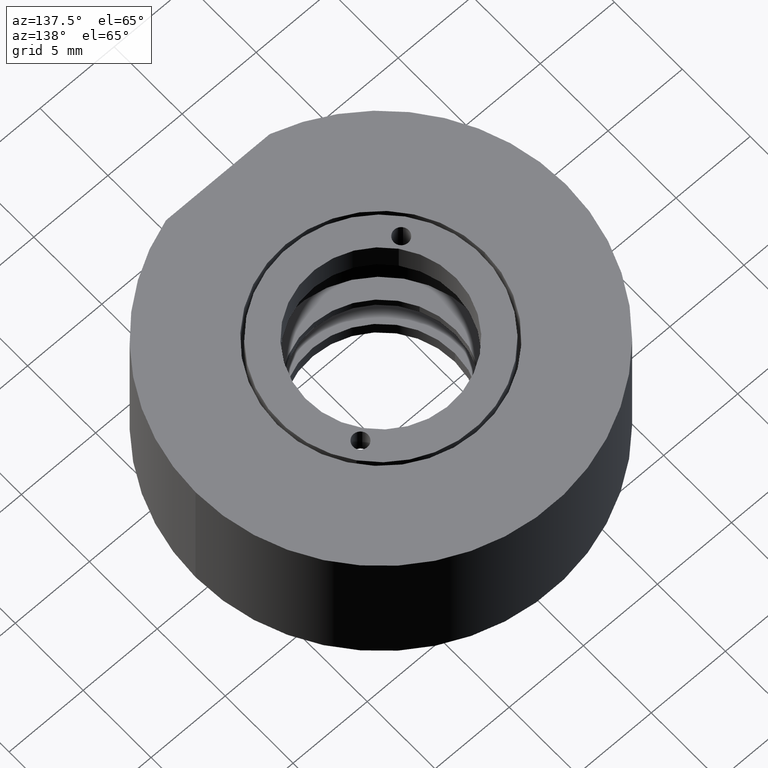
[diagram: clean part render]
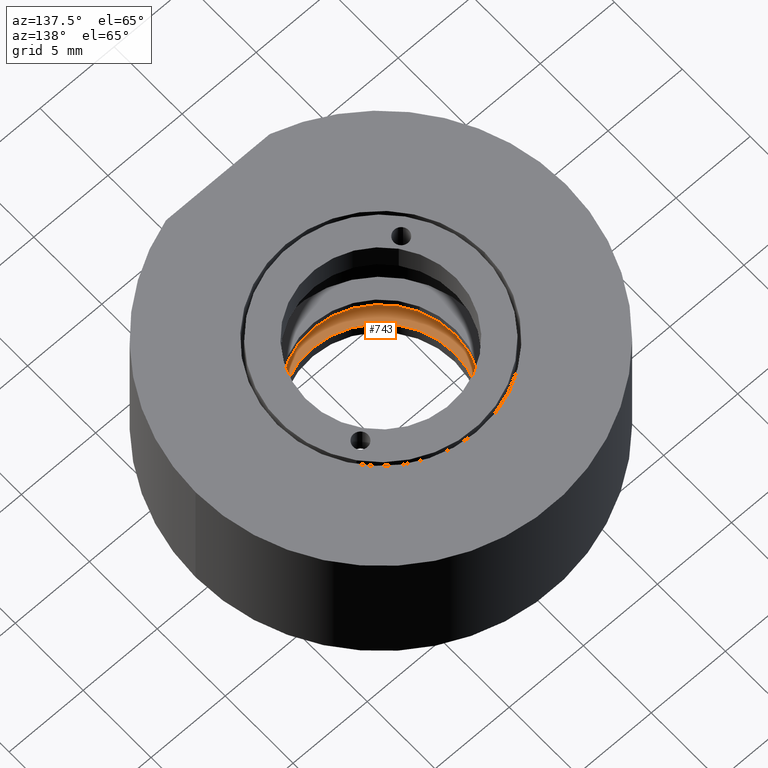
[diagram: same view with one face highlighted and labeled with its STEP entity id]
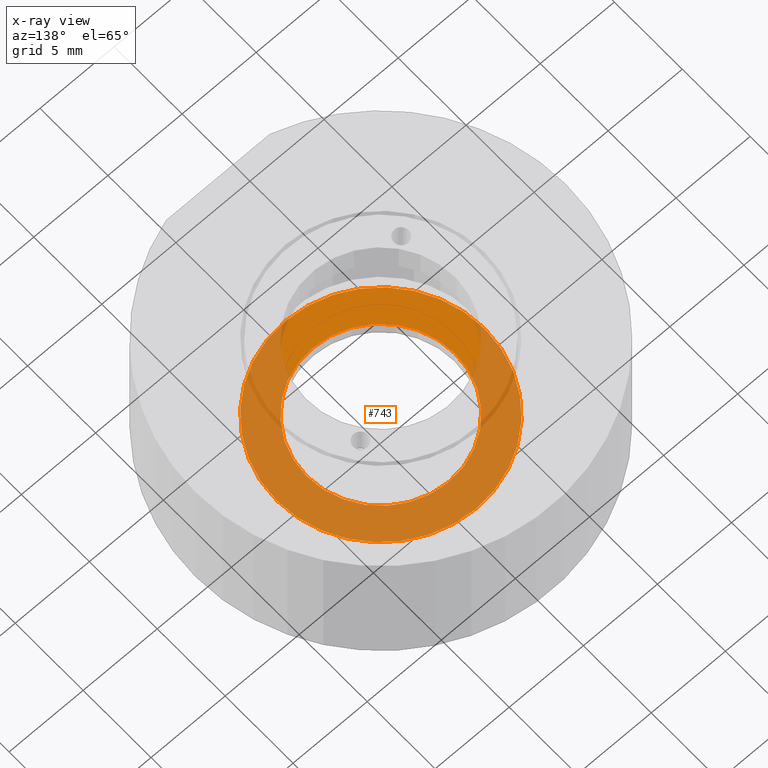
[diagram: x-ray of the same camera — body ghosted, the highlighted face saturated]
A machine part, auxiliary view. The second image highlights one B-rep face of the part: STEP entity #743.
The next image is the same camera in x-ray: the body ghosted, the highlighted face saturated — about 70% of this face is hidden behind the body in this view.
In plain terms, the highlighted planar face has unit normal (0, 0, 1).
Its self-contained STEP definition (entity closure, byte-faithful):
#19 = CARTESIAN_POINT ( 'NONE',  ( -17.64545028811109300, 4.389876407468494600, -6.499999999999999100 ) ) ;
#24 = CARTESIAN_POINT ( 'NONE',  ( -10.64545028811109300, 4.389876407468493700, -6.499999999999999100 ) ) ;
#36 = CARTESIAN_POINT ( 'NONE',  ( -10.64545028811109300, 4.389876407468493700, -6.499999999999999100 ) ) ;
#44 = EDGE_LOOP ( 'NONE', ( #539, #139 ) ) ;
#48 = CARTESIAN_POINT ( 'NONE',  ( -5.645450288111092600, 4.389876407468494600, -6.499999999999999100 ) ) ;
#68 = CIRCLE ( 'NONE', #253, 5.000000000000000000 ) ;
#92 = EDGE_CURVE ( 'NONE', #301, #905, #434, .T. ) ;
#104 = AXIS2_PLACEMENT_3D ( 'NONE', #190, #932, #323 ) ;
#128 = AXIS2_PLACEMENT_3D ( 'NONE', #862, #942, #489 ) ;
#129 = EDGE_LOOP ( 'NONE', ( #873, #516 ) ) ;
#139 = ORIENTED_EDGE ( 'NONE', *, *, #603, .T. ) ;
#190 = CARTESIAN_POINT ( 'NONE',  ( -10.64545028811109300, 4.389876407468493700, -6.499999999999999100 ) ) ;
#221 = FACE_OUTER_BOUND ( 'NONE', #44, .T. ) ;
#244 = DIRECTION ( 'NONE',  ( 1.000000000000000000, 0.0000000000000000000, 0.0000000000000000000 ) ) ;
#247 = CARTESIAN_POINT ( 'NONE',  ( -10.64545028811109300, 4.389876407468493700, -6.499999999999999100 ) ) ;
#253 = AXIS2_PLACEMENT_3D ( 'NONE', #24, #546, #307 ) ;
#262 = AXIS2_PLACEMENT_3D ( 'NONE', #36, #492, #569 ) ;
#301 = VERTEX_POINT ( 'NONE', #689 ) ;
#307 = DIRECTION ( 'NONE',  ( 1.000000000000000000, 0.0000000000000000000, 0.0000000000000000000 ) ) ;
#308 = FACE_BOUND ( 'NONE', #129, .T. ) ;
#323 = DIRECTION ( 'NONE',  ( 1.000000000000000000, 0.0000000000000000000, -0.0000000000000000000 ) ) ;
#386 = VERTEX_POINT ( 'NONE', #19 ) ;
#434 = CIRCLE ( 'NONE', #262, 5.000000000000000000 ) ;
#489 = DIRECTION ( 'NONE',  ( 1.000000000000000000, 0.0000000000000000000, 0.0000000000000000000 ) ) ;
#492 = DIRECTION ( 'NONE',  ( 0.0000000000000000000, 0.0000000000000000000, 1.000000000000000000 ) ) ;
#516 = ORIENTED_EDGE ( 'NONE', *, *, #589, .F. ) ;
#539 = ORIENTED_EDGE ( 'NONE', *, *, #825, .T. ) ;
#546 = DIRECTION ( 'NONE',  ( 0.0000000000000000000, 0.0000000000000000000, 1.000000000000000000 ) ) ;
#561 = CIRCLE ( 'NONE', #128, 7.000000000000000000 ) ;
#569 = DIRECTION ( 'NONE',  ( 1.000000000000000000, 0.0000000000000000000, 0.0000000000000000000 ) ) ;
#589 = EDGE_CURVE ( 'NONE', #905, #301, #68, .T. ) ;
#603 = EDGE_CURVE ( 'NONE', #386, #638, #854, .T. ) ;
#621 = CARTESIAN_POINT ( 'NONE',  ( -3.645450288111093100, 4.389876407468493700, -6.499999999999999100 ) ) ;
#638 = VERTEX_POINT ( 'NONE', #621 ) ;
#640 = PLANE ( 'NONE',  #104 ) ;
#689 = CARTESIAN_POINT ( 'NONE',  ( -15.64545028811109300, 4.389876407468493700, -6.499999999999999100 ) ) ;
#743 = ADVANCED_FACE ( 'NONE', ( #308, #221 ), #640, .T. ) ;
#782 = DIRECTION ( 'NONE',  ( 0.0000000000000000000, 0.0000000000000000000, 1.000000000000000000 ) ) ;
#825 = EDGE_CURVE ( 'NONE', #638, #386, #561, .T. ) ;
#854 = CIRCLE ( 'NONE', #946, 7.000000000000000000 ) ;
#862 = CARTESIAN_POINT ( 'NONE',  ( -10.64545028811109300, 4.389876407468493700, -6.499999999999999100 ) ) ;
#873 = ORIENTED_EDGE ( 'NONE', *, *, #92, .F. ) ;
#905 = VERTEX_POINT ( 'NONE', #48 ) ;
#932 = DIRECTION ( 'NONE',  ( 0.0000000000000000000, 0.0000000000000000000, 1.000000000000000000 ) ) ;
#942 = DIRECTION ( 'NONE',  ( 0.0000000000000000000, 0.0000000000000000000, 1.000000000000000000 ) ) ;
#946 = AXIS2_PLACEMENT_3D ( 'NONE', #247, #782, #244 ) ;